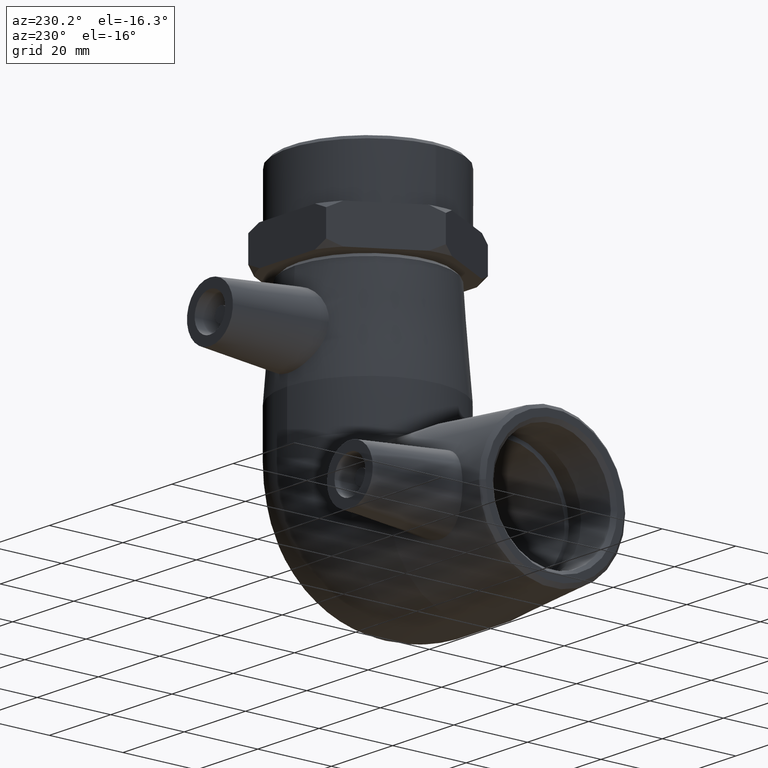
[diagram: clean part render]
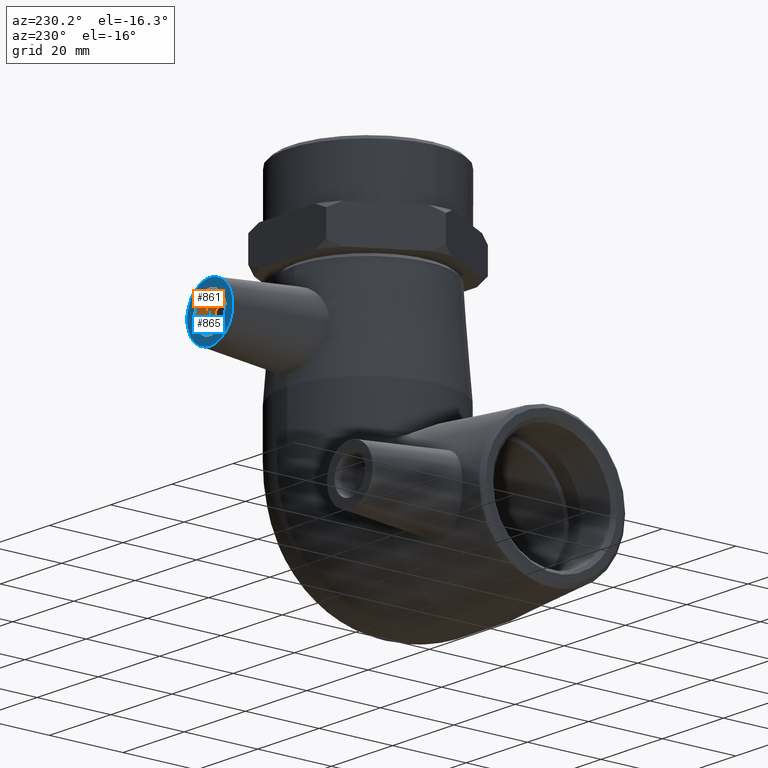
[diagram: same view with the hole feature highlighted: cylindrical wall and planar end face, labeled with their STEP entity ids]
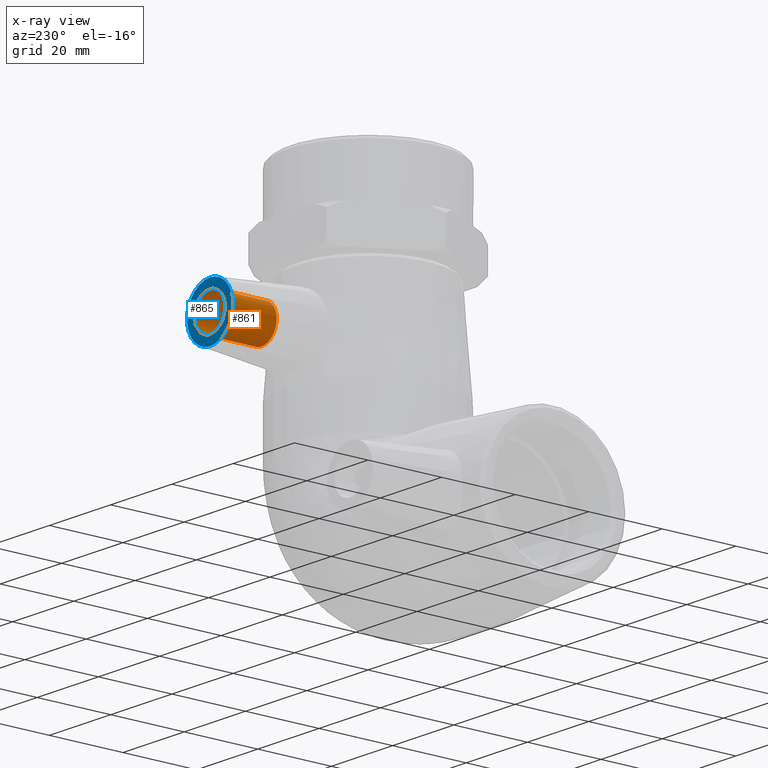
[diagram: x-ray of the same camera — body ghosted, the hole faces saturated]
A machine part, auxiliary view. The highlighted faces form one hole feature of diameter 10 mm: the cylindrical wall (entity #861, orange) and its adjacent planar end face (entity #865, blue) — they share a circular edge in the B-rep.
The next image is the same camera in x-ray (body ghosted, the hole faces saturated) — the bore reads through the body.
Wall:
#27=CYLINDRICAL_SURFACE('',#971,5.);
#56=FACE_BOUND('',#282,.T.);
#194=FACE_OUTER_BOUND('',#281,.T.);
#281=EDGE_LOOP('',(#757));
#282=EDGE_LOOP('',(#758));
#357=CIRCLE('',#972,5.);
#358=CIRCLE('',#973,5.);
#462=VERTEX_POINT('',#1616);
#463=VERTEX_POINT('',#1618);
#567=EDGE_CURVE('',#462,#462,#357,.T.);
#568=EDGE_CURVE('',#463,#463,#358,.T.);
#757=ORIENTED_EDGE('',*,*,#567,.T.);
#758=ORIENTED_EDGE('',*,*,#568,.F.);
#861=ADVANCED_FACE('',(#194,#56),#27,.F.);
#971=AXIS2_PLACEMENT_3D('',#1615,#1205,#1206);
#972=AXIS2_PLACEMENT_3D('',#1617,#1207,#1208);
#973=AXIS2_PLACEMENT_3D('',#1619,#1209,#1210);
#1205=DIRECTION('center_axis',(0.,-1.,0.));
#1206=DIRECTION('ref_axis',(-6.12323399573677E-17,0.,1.));
#1207=DIRECTION('center_axis',(0.,-1.,0.));
#1208=DIRECTION('ref_axis',(-6.12323399573677E-17,0.,1.));
#1209=DIRECTION('center_axis',(0.,-1.,0.));
#1210=DIRECTION('ref_axis',(-6.12323399573677E-17,0.,1.));
#1615=CARTESIAN_POINT('Origin',(-2.79525631905383E-15,43.,45.65));
#1616=CARTESIAN_POINT('',(-3.10141801884067E-15,29.,40.65));
#1617=CARTESIAN_POINT('Origin',(-2.79525631905383E-15,29.,45.65));
#1618=CARTESIAN_POINT('',(-3.10141801884067E-15,43.,40.65));
#1619=CARTESIAN_POINT('Origin',(-2.79525631905383E-15,43.,45.65));
End face:
#60=FACE_BOUND('',#290,.T.);
#141=PLANE('',#979);
#198=FACE_OUTER_BOUND('',#289,.T.);
#289=EDGE_LOOP('',(#766));
#290=EDGE_LOOP('',(#767));
#358=CIRCLE('',#973,5.);
#359=CIRCLE('',#978,7.5);
#463=VERTEX_POINT('',#1618);
#464=VERTEX_POINT('',#1624);
#568=EDGE_CURVE('',#463,#463,#358,.T.);
#570=EDGE_CURVE('',#464,#464,#359,.T.);
#766=ORIENTED_EDGE('',*,*,#570,.F.);
#767=ORIENTED_EDGE('',*,*,#568,.T.);
#865=ADVANCED_FACE('',(#198,#60),#141,.T.);
#973=AXIS2_PLACEMENT_3D('',#1619,#1209,#1210);
#978=AXIS2_PLACEMENT_3D('',#1625,#1219,#1220);
#979=AXIS2_PLACEMENT_3D('',#1626,#1221,#1222);
#1209=DIRECTION('center_axis',(0.,-1.,0.));
#1210=DIRECTION('ref_axis',(-6.12323399573677E-17,0.,1.));
#1219=DIRECTION('center_axis',(0.,-1.,0.));
#1220=DIRECTION('ref_axis',(6.12323399573676E-17,0.,-1.));
#1221=DIRECTION('center_axis',(0.,1.,0.));
#1222=DIRECTION('ref_axis',(1.,0.,0.));
#1618=CARTESIAN_POINT('',(-3.10141801884067E-15,43.,40.65));
#1619=CARTESIAN_POINT('Origin',(-2.79525631905383E-15,43.,45.65));
#1624=CARTESIAN_POINT('',(-2.33601376937358E-15,43.,53.15));
#1625=CARTESIAN_POINT('Origin',(-2.79525631905383E-15,43.,45.65));
#1626=CARTESIAN_POINT('Origin',(-2.67189820520659E-15,43.,45.65));